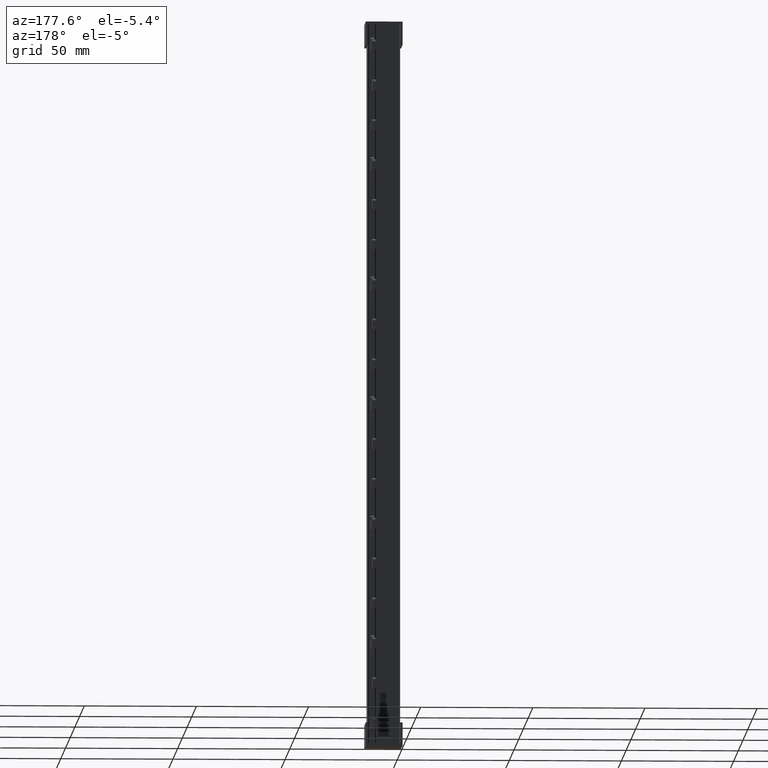
[diagram: clean part render]
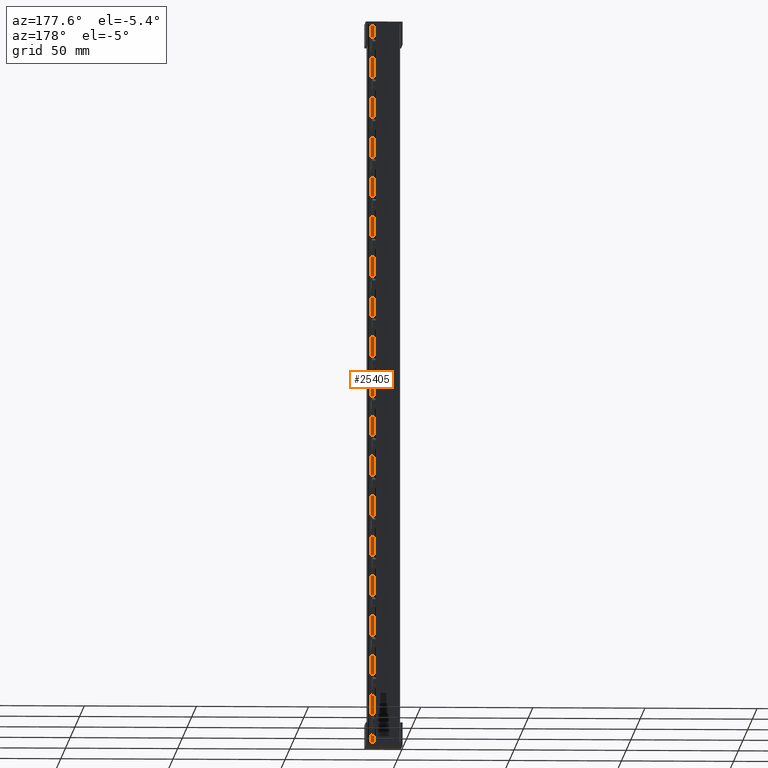
[diagram: same view with one face highlighted and labeled with its STEP entity id]
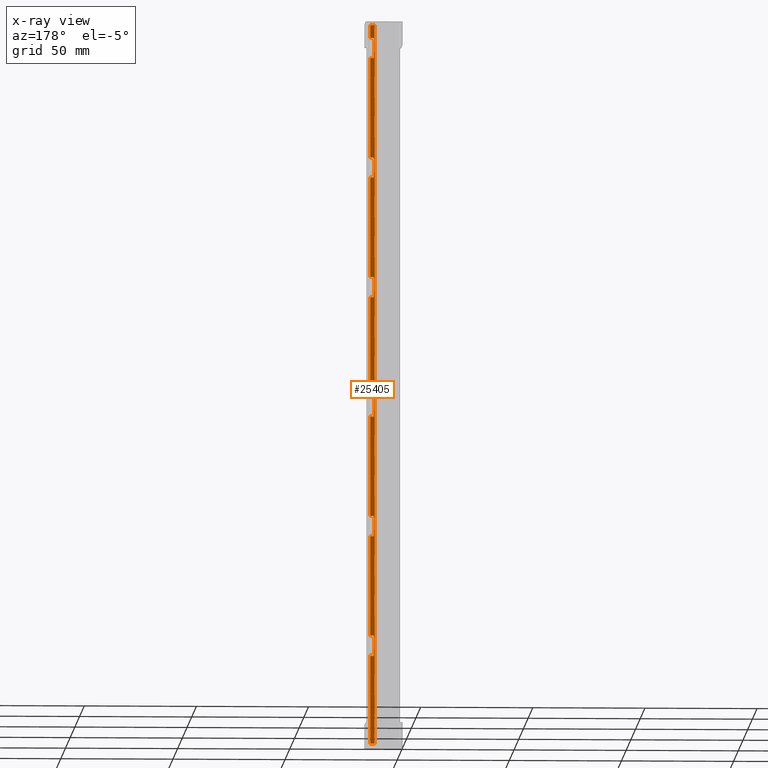
[diagram: x-ray of the same camera — body ghosted, the highlighted face saturated]
A machine part, auxiliary view. The second image highlights one B-rep face of the part: STEP entity #25405.
The next image is the same camera in x-ray: the body ghosted, the highlighted face saturated — about 0% of this face is hidden behind the body in this view.
In plain terms, the highlighted planar face has unit normal (0, -1, 0).
Its self-contained STEP definition (entity closure, byte-faithful):
#1654 = AXIS2_PLACEMENT_3D ( 'NONE', #4976, #5007, #5013 ) ;
#2133 = VECTOR ( 'NONE', #6602, 1000.000000000000000 ) ;
#2148 = VECTOR ( 'NONE', #6603, 1000.000000000000000 ) ;
#2154 = VECTOR ( 'NONE', #6520, 1000.000000000000000 ) ;
#2162 = VECTOR ( 'NONE', #6484, 1000.000000000000000 ) ;
#2165 = VECTOR ( 'NONE', #6521, 1000.000000000000000 ) ;
#2179 = VECTOR ( 'NONE', #6697, 1000.000000000000000 ) ;
#2184 = VECTOR ( 'NONE', #6780, 1000.000000000000000 ) ;
#2186 = VECTOR ( 'NONE', #6785, 1000.000000000000000 ) ;
#2190 = VECTOR ( 'NONE', #6678, 1000.000000000000000 ) ;
#2191 = VECTOR ( 'NONE', #6764, 1000.000000000000000 ) ;
#2193 = VECTOR ( 'NONE', #6753, 1000.000000000000000 ) ;
#2207 = VECTOR ( 'NONE', #6814, 1000.000000000000000 ) ;
#2210 = VECTOR ( 'NONE', #6704, 1000.000000000000000 ) ;
#2211 = VECTOR ( 'NONE', #6771, 1000.000000000000000 ) ;
#2216 = VECTOR ( 'NONE', #6758, 1000.000000000000000 ) ;
#2221 = VECTOR ( 'NONE', #6825, 1000.000000000000000 ) ;
#2223 = VECTOR ( 'NONE', #6684, 1000.000000000000000 ) ;
#2235 = VECTOR ( 'NONE', #6692, 1000.000000000000000 ) ;
#2236 = VECTOR ( 'NONE', #6720, 1000.000000000000000 ) ;
#2237 = VECTOR ( 'NONE', #6800, 1000.000000000000000 ) ;
#2238 = VECTOR ( 'NONE', #6791, 1000.000000000000000 ) ;
#2271 = VECTOR ( 'NONE', #6895, 1000.000000000000000 ) ;
#2290 = VECTOR ( 'NONE', #6822, 1000.000000000000000 ) ;
#2296 = VECTOR ( 'NONE', #7028, 1000.000000000000000 ) ;
#2302 = VECTOR ( 'NONE', #6858, 1000.000000000000000 ) ;
#2310 = VECTOR ( 'NONE', #7063, 1000.000000000000000 ) ;
#2319 = VECTOR ( 'NONE', #7070, 1000.000000000000000 ) ;
#2326 = VECTOR ( 'NONE', #6996, 1000.000000000000000 ) ;
#4966 = FACE_BOUND ( 'NONE', #27883, .T. ) ;
#4967 = PLANE ( 'NONE',  #1654 ) ;
#4970 = FACE_BOUND ( 'NONE', #27943, .T. ) ;
#4976 = CARTESIAN_POINT ( 'NONE',  ( -208.6787056034466200, 11.69096289031699100, 3.796538565398952000E-016 ) ) ;
#4985 = FACE_BOUND ( 'NONE', #27929, .T. ) ;
#4993 = FACE_BOUND ( 'NONE', #27881, .T. ) ;
#5004 = FACE_OUTER_BOUND ( 'NONE', #27931, .T. ) ;
#5005 = FACE_BOUND ( 'NONE', #27936, .T. ) ;
#5007 = DIRECTION ( 'NONE',  ( 0.0000000000000000000, -1.000000000000000000, 1.188166764367676100E-016 ) ) ;
#5013 = DIRECTION ( 'NONE',  ( 0.0000000000000000000, -1.188166764367676100E-016, -1.000000000000000000 ) ) ;
#5015 = FACE_BOUND ( 'NONE', #27903, .T. ) ;
#6484 = DIRECTION ( 'NONE',  ( -1.000000000000000000, -0.0000000000000000000, -0.0000000000000000000 ) ) ;
#6509 = LINE ( 'NONE', #6528, #2165 ) ;
#6517 = CARTESIAN_POINT ( 'NONE',  ( -208.6787056034466200, 11.69096289031699600, 42.57999999999998400 ) ) ;
#6518 = LINE ( 'NONE', #6517, #2162 ) ;
#6519 = CARTESIAN_POINT ( 'NONE',  ( -208.6787056034466200, 11.69096289031700300, 105.0800000000000300 ) ) ;
#6520 = DIRECTION ( 'NONE',  ( 1.000000000000000000, 0.0000000000000000000, 0.0000000000000000000 ) ) ;
#6521 = DIRECTION ( 'NONE',  ( -0.0000000000000000000, 1.188166764367676100E-016, 1.000000000000000000 ) ) ;
#6528 = CARTESIAN_POINT ( 'NONE',  ( 10.85637477970041700, 11.69096289031699100, 3.796538565398952000E-016 ) ) ;
#6529 = LINE ( 'NONE', #6519, #2154 ) ;
#6575 = CARTESIAN_POINT ( 'NONE',  ( -208.6787056034466200, 11.69096289031698400, -64.42000000000000200 ) ) ;
#6583 = LINE ( 'NONE', #6575, #2133 ) ;
#6590 = CARTESIAN_POINT ( 'NONE',  ( 10.85637477970041700, 11.69096289031699100, 3.796538565398952000E-016 ) ) ;
#6598 = LINE ( 'NONE', #6590, #2148 ) ;
#6602 = DIRECTION ( 'NONE',  ( -1.000000000000000000, -0.0000000000000000000, -0.0000000000000000000 ) ) ;
#6603 = DIRECTION ( 'NONE',  ( -0.0000000000000000000, 1.188166764367676100E-016, 1.000000000000000000 ) ) ;
#6670 = LINE ( 'NONE', #6674, #2190 ) ;
#6674 = CARTESIAN_POINT ( 'NONE',  ( -208.6787056034466200, 11.69096289031699100, -1.920000000000005000 ) ) ;
#6678 = DIRECTION ( 'NONE',  ( 1.000000000000000000, 0.0000000000000000000, 0.0000000000000000000 ) ) ;
#6679 = LINE ( 'NONE', #6695, #2235 ) ;
#6680 = LINE ( 'NONE', #6705, #2223 ) ;
#6684 = DIRECTION ( 'NONE',  ( 0.0000000000000000000, -1.188166764367676100E-016, -1.000000000000000000 ) ) ;
#6692 = DIRECTION ( 'NONE',  ( -1.000000000000000000, -0.0000000000000000000, -0.0000000000000000000 ) ) ;
#6693 = LINE ( 'NONE', #6715, #2210 ) ;
#6695 = CARTESIAN_POINT ( 'NONE',  ( -208.6787056034466200, 11.69096289031700300, 96.07999999999999800 ) ) ;
#6697 = DIRECTION ( 'NONE',  ( 1.000000000000000000, 0.0000000000000000000, 0.0000000000000000000 ) ) ;
#6698 = LINE ( 'NONE', #6722, #2211 ) ;
#6704 = DIRECTION ( 'NONE',  ( -0.0000000000000000000, 1.188166764367676100E-016, 1.000000000000000000 ) ) ;
#6705 = CARTESIAN_POINT ( 'NONE',  ( 12.35637477970041900, 11.69096289031699100, 3.796538565398952000E-016 ) ) ;
#6711 = LINE ( 'NONE', #6712, #2179 ) ;
#6712 = CARTESIAN_POINT ( 'NONE',  ( -208.6787056034466200, 11.69096289031701000, 158.5800000000000100 ) ) ;
#6715 = CARTESIAN_POINT ( 'NONE',  ( 12.42637477970043300, 11.69096289031699100, 3.796538565398952000E-016 ) ) ;
#6716 = LINE ( 'NONE', #6781, #2236 ) ;
#6720 = DIRECTION ( 'NONE',  ( 0.0000000000000000000, -1.188166764367676100E-016, -1.000000000000000000 ) ) ;
#6721 = LINE ( 'NONE', #6779, #2184 ) ;
#6722 = CARTESIAN_POINT ( 'NONE',  ( -208.6787056034466200, 11.69096289031699800, 51.57999999999999100 ) ) ;
#6725 = LINE ( 'NONE', #6830, #2237 ) ;
#6730 = LINE ( 'NONE', #6773, #2186 ) ;
#6738 = LINE ( 'NONE', #6744, #2216 ) ;
#6744 = CARTESIAN_POINT ( 'NONE',  ( 10.85637477970041700, 11.69096289031699100, 3.796538565398952000E-016 ) ) ;
#6746 = LINE ( 'NONE', #6749, #2193 ) ;
#6749 = CARTESIAN_POINT ( 'NONE',  ( 12.35637477970041900, 11.69096289031699100, 3.796538565398952000E-016 ) ) ;
#6751 = LINE ( 'NONE', #6762, #2191 ) ;
#6753 = DIRECTION ( 'NONE',  ( 0.0000000000000000000, -1.188166764367676100E-016, -1.000000000000000000 ) ) ;
#6758 = DIRECTION ( 'NONE',  ( -0.0000000000000000000, 1.188166764367676100E-016, 1.000000000000000000 ) ) ;
#6762 = CARTESIAN_POINT ( 'NONE',  ( 12.35637477970041900, 11.69096289031699100, 3.796538565398952000E-016 ) ) ;
#6764 = DIRECTION ( 'NONE',  ( 0.0000000000000000000, -1.188166764367676100E-016, -1.000000000000000000 ) ) ;
#6771 = DIRECTION ( 'NONE',  ( 1.000000000000000000, 0.0000000000000000000, 0.0000000000000000000 ) ) ;
#6773 = CARTESIAN_POINT ( 'NONE',  ( 10.85637477970041700, 11.69096289031699100, 3.796538565398952000E-016 ) ) ;
#6779 = CARTESIAN_POINT ( 'NONE',  ( -208.6787056034466200, 11.69096289031700800, 149.5799999999999800 ) ) ;
#6780 = DIRECTION ( 'NONE',  ( -1.000000000000000000, -0.0000000000000000000, -0.0000000000000000000 ) ) ;
#6781 = CARTESIAN_POINT ( 'NONE',  ( 10.57004286750129500, 11.69096289031699100, 3.796538565398952000E-016 ) ) ;
#6785 = DIRECTION ( 'NONE',  ( -0.0000000000000000000, 1.188166764367676100E-016, 1.000000000000000000 ) ) ;
#6791 = DIRECTION ( 'NONE',  ( -1.000000000000000000, -0.0000000000000000000, -0.0000000000000000000 ) ) ;
#6800 = DIRECTION ( 'NONE',  ( -0.0000000000000000000, 1.188166764367676100E-016, 1.000000000000000000 ) ) ;
#6801 = LINE ( 'NONE', #6842, #2290 ) ;
#6802 = LINE ( 'NONE', #6850, #2207 ) ;
#6814 = DIRECTION ( 'NONE',  ( 0.0000000000000000000, -1.188166764367676100E-016, -1.000000000000000000 ) ) ;
#6822 = DIRECTION ( 'NONE',  ( 1.000000000000000000, 0.0000000000000000000, 0.0000000000000000000 ) ) ;
#6824 = LINE ( 'NONE', #6844, #2221 ) ;
#6825 = DIRECTION ( 'NONE',  ( 1.000000000000000000, 0.0000000000000000000, 0.0000000000000000000 ) ) ;
#6826 = CARTESIAN_POINT ( 'NONE',  ( -208.6787056034466200, 11.69096289031701600, 203.0799999999999800 ) ) ;
#6830 = CARTESIAN_POINT ( 'NONE',  ( 10.85637477970041700, 11.69096289031699100, 3.796538565398952000E-016 ) ) ;
#6842 = CARTESIAN_POINT ( 'NONE',  ( -208.6787056034466200, 11.69096289031698400, -55.42000000000000200 ) ) ;
#6844 = CARTESIAN_POINT ( 'NONE',  ( -208.6787056034466200, 11.69096289031701700, 212.0799999999999800 ) ) ;
#6849 = LINE ( 'NONE', #6826, #2238 ) ;
#6850 = CARTESIAN_POINT ( 'NONE',  ( 12.35637477970041900, 11.69096289031699100, 3.796538565398952000E-016 ) ) ;
#6857 = LINE ( 'NONE', #6885, #2302 ) ;
#6858 = DIRECTION ( 'NONE',  ( -0.0000000000000000000, 1.188166764367676100E-016, 1.000000000000000000 ) ) ;
#6877 = CARTESIAN_POINT ( 'NONE',  ( 12.35637477970041900, 11.69096289031699100, 3.796538565398952000E-016 ) ) ;
#6885 = CARTESIAN_POINT ( 'NONE',  ( 10.85637477970041700, 11.69096289031699100, 3.796538565398952000E-016 ) ) ;
#6893 = LINE ( 'NONE', #6877, #2271 ) ;
#6895 = DIRECTION ( 'NONE',  ( 0.0000000000000000000, -1.188166764367676100E-016, -1.000000000000000000 ) ) ;
#6974 = LINE ( 'NONE', #7032, #2296 ) ;
#6996 = DIRECTION ( 'NONE',  ( 1.000000000000000000, 0.0000000000000000000, -4.965472477636011600E-013 ) ) ;
#7004 = LINE ( 'NONE', #7027, #2326 ) ;
#7027 = CARTESIAN_POINT ( 'NONE',  ( 13.86600000010872900, 11.69096289031701700, 217.8000000000516800 ) ) ;
#7028 = DIRECTION ( 'NONE',  ( -1.000000000000000000, -0.0000000000000000000, -0.0000000000000000000 ) ) ;
#7032 = CARTESIAN_POINT ( 'NONE',  ( -208.6787056034466200, 11.69096289031698900, -10.92000000000001200 ) ) ;
#7044 = LINE ( 'NONE', #7051, #2310 ) ;
#7051 = CARTESIAN_POINT ( 'NONE',  ( 12.35637477970041900, 11.69096289031699100, 3.796538565398952000E-016 ) ) ;
#7063 = DIRECTION ( 'NONE',  ( 0.0000000000000000000, -1.188166764367676100E-016, -1.000000000000000000 ) ) ;
#7068 = CARTESIAN_POINT ( 'NONE',  ( 13.86600000010872900, 11.69096289031697800, -103.8000000000516800 ) ) ;
#7070 = DIRECTION ( 'NONE',  ( -1.000000000000000000, 0.0000000000000000000, -4.965472477636011600E-013 ) ) ;
#7086 = LINE ( 'NONE', #7068, #2319 ) ;
#8412 = CARTESIAN_POINT ( 'NONE',  ( 12.35637477970041900, 11.69096289031699100, -1.920000000000005000 ) ) ;
#8416 = CARTESIAN_POINT ( 'NONE',  ( 10.57004286750129500, 11.69096289031701900, 217.8000000000532700 ) ) ;
#8419 = CARTESIAN_POINT ( 'NONE',  ( 12.35637477970041900, 11.69096289031701900, 212.0799999999999600 ) ) ;
#8420 = CARTESIAN_POINT ( 'NONE',  ( 12.35637477970041900, 11.69096289031700300, 96.07999999999999800 ) ) ;
#8421 = CARTESIAN_POINT ( 'NONE',  ( 12.42637477970043300, 11.69096289031701900, 217.8000000000523900 ) ) ;
#8422 = CARTESIAN_POINT ( 'NONE',  ( 10.57004286750129500, 11.69096289031697800, -103.8000000000533300 ) ) ;
#8425 = CARTESIAN_POINT ( 'NONE',  ( 10.85637477970041700, 11.69096289031699600, 42.57999999999997700 ) ) ;
#8426 = CARTESIAN_POINT ( 'NONE',  ( 12.35637477970041900, 11.69096289031700500, 105.0800000000000300 ) ) ;
#8427 = CARTESIAN_POINT ( 'NONE',  ( 10.85637477970041700, 11.69096289031700300, 105.0800000000000300 ) ) ;
#8429 = CARTESIAN_POINT ( 'NONE',  ( 10.85637477970041700, 11.69096289031701700, 203.0799999999999800 ) ) ;
#8431 = CARTESIAN_POINT ( 'NONE',  ( 10.85637477970041700, 11.69096289031700800, 149.5799999999999800 ) ) ;
#8438 = CARTESIAN_POINT ( 'NONE',  ( 12.42637477970043300, 11.69096289031697800, -103.8000000000394200 ) ) ;
#8440 = CARTESIAN_POINT ( 'NONE',  ( 10.85637477970041700, 11.69096289031700300, 96.07999999999999800 ) ) ;
#8441 = CARTESIAN_POINT ( 'NONE',  ( 10.85637477970041700, 11.69096289031699600, -64.41999999999998700 ) ) ;
#8444 = CARTESIAN_POINT ( 'NONE',  ( 10.85637477970041700, 11.69096289031699600, -10.92000000000001200 ) ) ;
#8448 = CARTESIAN_POINT ( 'NONE',  ( 10.85637477970041700, 11.69096289031698900, -55.42000000000000900 ) ) ;
#8450 = CARTESIAN_POINT ( 'NONE',  ( 10.85637477970041700, 11.69096289031701000, 158.5800000000000100 ) ) ;
#8451 = CARTESIAN_POINT ( 'NONE',  ( 12.35637477970041900, 11.69096289031698500, -64.42000000000000200 ) ) ;
#8452 = CARTESIAN_POINT ( 'NONE',  ( 12.35637477970041900, 11.69096289031698400, -55.42000000000000200 ) ) ;
#8453 = CARTESIAN_POINT ( 'NONE',  ( 12.35637477970041900, 11.69096289031701000, 158.5800000000000100 ) ) ;
#8456 = CARTESIAN_POINT ( 'NONE',  ( 12.35637477970041900, 11.69096289031699400, 42.57999999999997700 ) ) ;
#8458 = CARTESIAN_POINT ( 'NONE',  ( 12.35637477970041900, 11.69096289031699100, -10.92000000000001200 ) ) ;
#8459 = CARTESIAN_POINT ( 'NONE',  ( 12.35637477970041900, 11.69096289031701700, 203.0799999999999800 ) ) ;
#8464 = CARTESIAN_POINT ( 'NONE',  ( 10.85637477970041700, 11.69096289031701700, 212.0799999999999800 ) ) ;
#8471 = CARTESIAN_POINT ( 'NONE',  ( 10.85637477970041700, 11.69096289031699200, -1.920000000000005000 ) ) ;
#8472 = CARTESIAN_POINT ( 'NONE',  ( 10.85637477970041700, 11.69096289031699600, 51.57999999999999100 ) ) ;
#8477 = CARTESIAN_POINT ( 'NONE',  ( 12.35637477970041900, 11.69096289031701000, 149.5799999999999800 ) ) ;
#8479 = CARTESIAN_POINT ( 'NONE',  ( 12.35637477970041900, 11.69096289031699800, 51.57999999999999100 ) ) ;
#22959 = VERTEX_POINT ( 'NONE', #8412 ) ;
#22972 = VERTEX_POINT ( 'NONE', #8448 ) ;
#22973 = VERTEX_POINT ( 'NONE', #8444 ) ;
#22975 = VERTEX_POINT ( 'NONE', #8421 ) ;
#22981 = VERTEX_POINT ( 'NONE', #8453 ) ;
#22987 = VERTEX_POINT ( 'NONE', #8425 ) ;
#22989 = VERTEX_POINT ( 'NONE', #8426 ) ;
#22991 = VERTEX_POINT ( 'NONE', #8456 ) ;
#22995 = VERTEX_POINT ( 'NONE', #8452 ) ;
#22999 = VERTEX_POINT ( 'NONE', #8459 ) ;
#23003 = VERTEX_POINT ( 'NONE', #8422 ) ;
#23005 = VERTEX_POINT ( 'NONE', #8440 ) ;
#23007 = VERTEX_POINT ( 'NONE', #8419 ) ;
#23009 = VERTEX_POINT ( 'NONE', #8479 ) ;
#23013 = VERTEX_POINT ( 'NONE', #8451 ) ;
#23017 = VERTEX_POINT ( 'NONE', #8477 ) ;
#23022 = VERTEX_POINT ( 'NONE', #8441 ) ;
#23027 = VERTEX_POINT ( 'NONE', #8458 ) ;
#23029 = VERTEX_POINT ( 'NONE', #8416 ) ;
#23039 = VERTEX_POINT ( 'NONE', #8464 ) ;
#23042 = VERTEX_POINT ( 'NONE', #8420 ) ;
#23046 = VERTEX_POINT ( 'NONE', #8429 ) ;
#23047 = VERTEX_POINT ( 'NONE', #8450 ) ;
#23061 = VERTEX_POINT ( 'NONE', #8427 ) ;
#23063 = VERTEX_POINT ( 'NONE', #8472 ) ;
#23065 = VERTEX_POINT ( 'NONE', #8471 ) ;
#23067 = VERTEX_POINT ( 'NONE', #8438 ) ;
#23072 = VERTEX_POINT ( 'NONE', #8431 ) ;
#25405 = ADVANCED_FACE ( 'NONE', ( #5004, #4993, #4985, #5015, #5005, #4970, #4966 ), #4967, .F. ) ;
#27881 = EDGE_LOOP ( 'NONE', ( #30728, #30709, #30750, #30751 ) ) ;
#27883 = EDGE_LOOP ( 'NONE', ( #30784, #30770, #30782, #30769 ) ) ;
#27903 = EDGE_LOOP ( 'NONE', ( #30791, #30785, #30800, #30793 ) ) ;
#27929 = EDGE_LOOP ( 'NONE', ( #30723, #30737, #30733, #30730 ) ) ;
#27931 = EDGE_LOOP ( 'NONE', ( #30705, #30706, #30749, #30735 ) ) ;
#27936 = EDGE_LOOP ( 'NONE', ( #30809, #30819, #30766, #30796 ) ) ;
#27943 = EDGE_LOOP ( 'NONE', ( #30787, #30771, #30788, #30808 ) ) ;
#29394 = EDGE_CURVE ( 'NONE', #22991, #22987, #6518, .T. ) ;
#29398 = EDGE_CURVE ( 'NONE', #23061, #22989, #6529, .T. ) ;
#29399 = EDGE_CURVE ( 'NONE', #22987, #23063, #6509, .T. ) ;
#29432 = EDGE_CURVE ( 'NONE', #22973, #23065, #6598, .T. ) ;
#29433 = EDGE_CURVE ( 'NONE', #23013, #23022, #6583, .T. ) ;
#29458 = EDGE_CURVE ( 'NONE', #23009, #22991, #6680, .T. ) ;
#29462 = EDGE_CURVE ( 'NONE', #23065, #22959, #6670, .T. ) ;
#29464 = EDGE_CURVE ( 'NONE', #23067, #22975, #6693, .T. ) ;
#29465 = EDGE_CURVE ( 'NONE', #23042, #23005, #6679, .T. ) ;
#29466 = EDGE_CURVE ( 'NONE', #23047, #22981, #6711, .T. ) ;
#29470 = EDGE_CURVE ( 'NONE', #23029, #23003, #6716, .T. ) ;
#29471 = EDGE_CURVE ( 'NONE', #23007, #22999, #6751, .T. ) ;
#29474 = EDGE_CURVE ( 'NONE', #23063, #23009, #6698, .T. ) ;
#29476 = EDGE_CURVE ( 'NONE', #23072, #23047, #6730, .T. ) ;
#29479 = EDGE_CURVE ( 'NONE', #23046, #23039, #6738, .T. ) ;
#29481 = EDGE_CURVE ( 'NONE', #23017, #23072, #6721, .T. ) ;
#29483 = EDGE_CURVE ( 'NONE', #22981, #23017, #6746, .T. ) ;
#29486 = EDGE_CURVE ( 'NONE', #22999, #23046, #6849, .T. ) ;
#29487 = EDGE_CURVE ( 'NONE', #23039, #23007, #6824, .T. ) ;
#29488 = EDGE_CURVE ( 'NONE', #23022, #22972, #6725, .T. ) ;
#29491 = EDGE_CURVE ( 'NONE', #22989, #23042, #6802, .T. ) ;
#29496 = EDGE_CURVE ( 'NONE', #22972, #22995, #6801, .T. ) ;
#29501 = EDGE_CURVE ( 'NONE', #22995, #23013, #6893, .T. ) ;
#29510 = EDGE_CURVE ( 'NONE', #23005, #23061, #6857, .T. ) ;
#29547 = EDGE_CURVE ( 'NONE', #23027, #22973, #6974, .T. ) ;
#29555 = EDGE_CURVE ( 'NONE', #23029, #22975, #7004, .T. ) ;
#29567 = EDGE_CURVE ( 'NONE', #22959, #23027, #7044, .T. ) ;
#29573 = EDGE_CURVE ( 'NONE', #23067, #23003, #7086, .T. ) ;
#30705 = ORIENTED_EDGE ( 'NONE', *, *, #29555, .T. ) ;
#30706 = ORIENTED_EDGE ( 'NONE', *, *, #29464, .F. ) ;
#30709 = ORIENTED_EDGE ( 'NONE', *, *, #29471, .F. ) ;
#30723 = ORIENTED_EDGE ( 'NONE', *, *, #29465, .F. ) ;
#30728 = ORIENTED_EDGE ( 'NONE', *, *, #29486, .F. ) ;
#30730 = ORIENTED_EDGE ( 'NONE', *, *, #29510, .F. ) ;
#30733 = ORIENTED_EDGE ( 'NONE', *, *, #29398, .F. ) ;
#30735 = ORIENTED_EDGE ( 'NONE', *, *, #29470, .F. ) ;
#30737 = ORIENTED_EDGE ( 'NONE', *, *, #29491, .F. ) ;
#30749 = ORIENTED_EDGE ( 'NONE', *, *, #29573, .T. ) ;
#30750 = ORIENTED_EDGE ( 'NONE', *, *, #29487, .F. ) ;
#30751 = ORIENTED_EDGE ( 'NONE', *, *, #29479, .F. ) ;
#30766 = ORIENTED_EDGE ( 'NONE', *, *, #29496, .F. ) ;
#30769 = ORIENTED_EDGE ( 'NONE', *, *, #29432, .F. ) ;
#30770 = ORIENTED_EDGE ( 'NONE', *, *, #29567, .F. ) ;
#30771 = ORIENTED_EDGE ( 'NONE', *, *, #29394, .F. ) ;
#30782 = ORIENTED_EDGE ( 'NONE', *, *, #29462, .F. ) ;
#30784 = ORIENTED_EDGE ( 'NONE', *, *, #29547, .F. ) ;
#30785 = ORIENTED_EDGE ( 'NONE', *, *, #29476, .F. ) ;
#30787 = ORIENTED_EDGE ( 'NONE', *, *, #29399, .F. ) ;
#30788 = ORIENTED_EDGE ( 'NONE', *, *, #29458, .F. ) ;
#30791 = ORIENTED_EDGE ( 'NONE', *, *, #29466, .F. ) ;
#30793 = ORIENTED_EDGE ( 'NONE', *, *, #29483, .F. ) ;
#30796 = ORIENTED_EDGE ( 'NONE', *, *, #29488, .F. ) ;
#30800 = ORIENTED_EDGE ( 'NONE', *, *, #29481, .F. ) ;
#30808 = ORIENTED_EDGE ( 'NONE', *, *, #29474, .F. ) ;
#30809 = ORIENTED_EDGE ( 'NONE', *, *, #29433, .F. ) ;
#30819 = ORIENTED_EDGE ( 'NONE', *, *, #29501, .F. ) ;